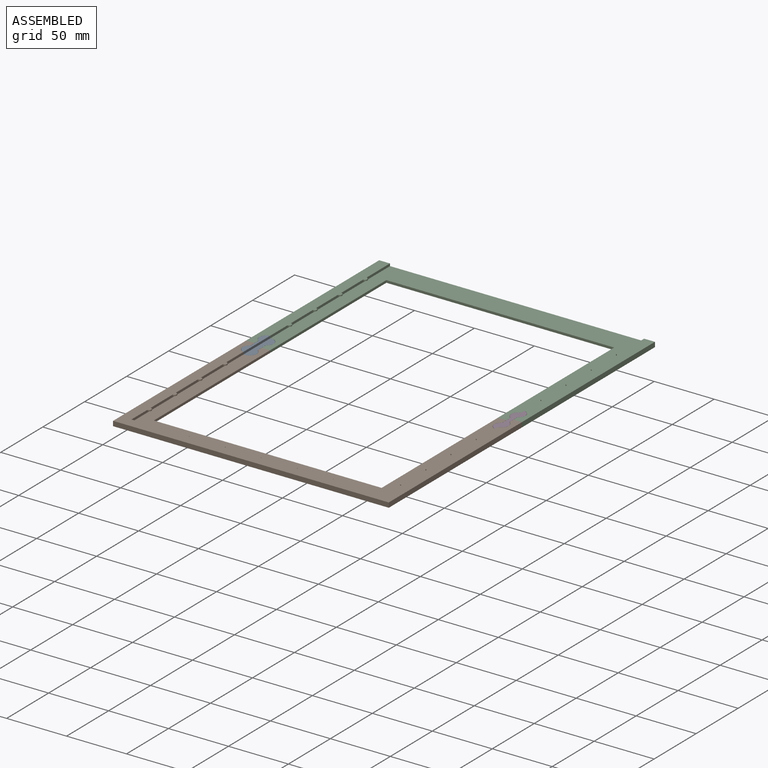
[diagram: assembled view]
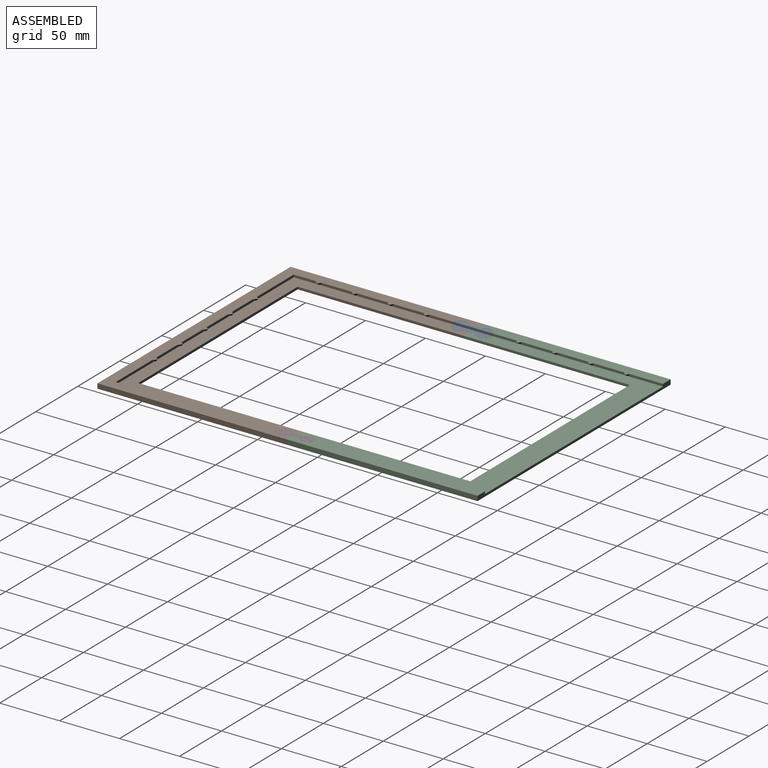
[diagram: assembled view, second angle]
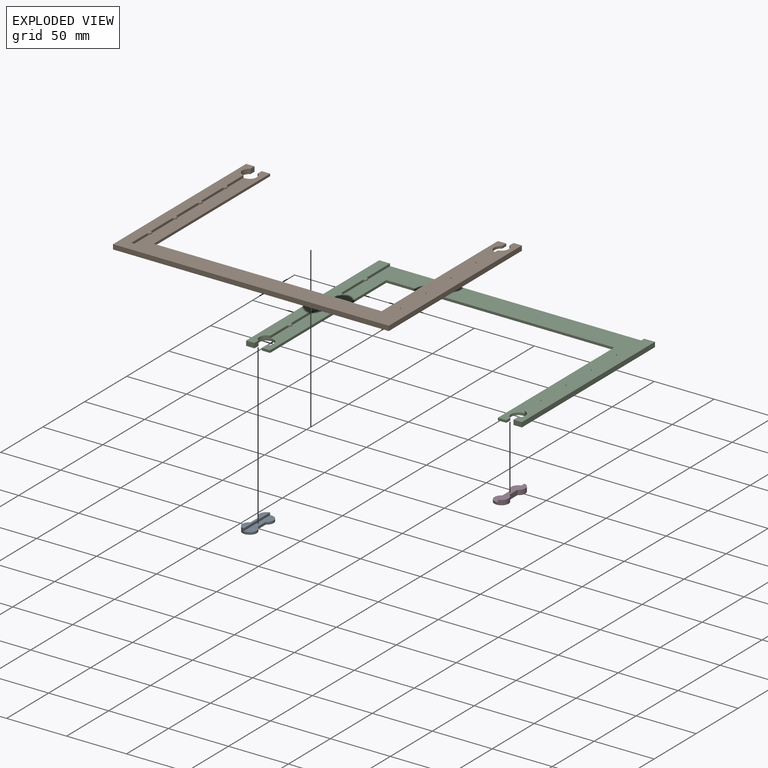
[diagram: exploded view]
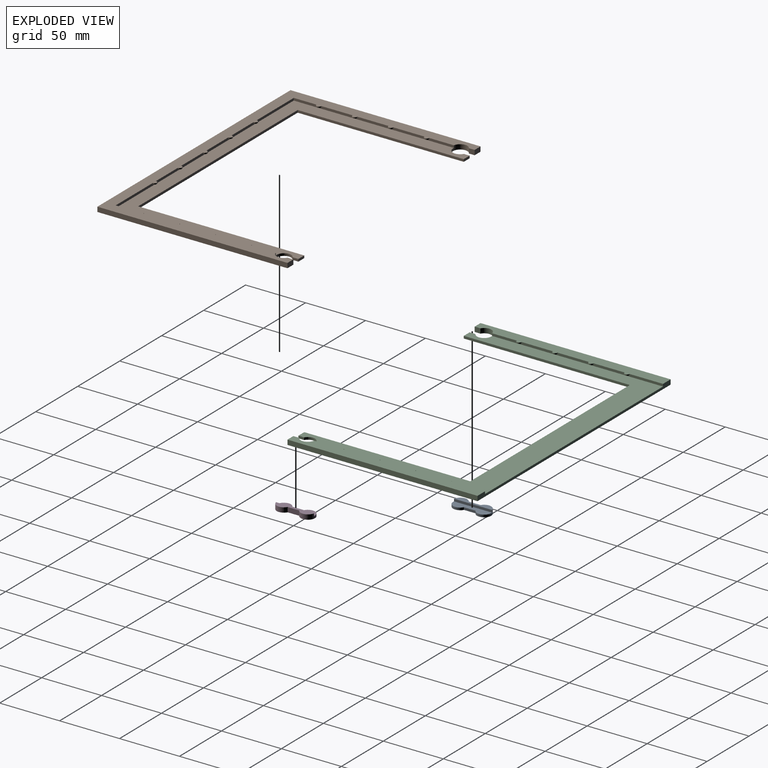
[diagram: exploded view, second angle]
ASSEMBLY  parts=4 mates=3
PART A: 8 faces, bbox 11.8x31.8x4 mm
  f0: cylinder r=5.9mm len=11.8mm, axis (0,0,-1), area 91mm2, adj f1,f3,f4,f5,f6,f7
  f1: plane 9.72x2mm, normal (1,0,0), area 19.4mm2, adj f0,f2,f5,f7
  f2: cylinder r=5.9mm len=11.8mm, axis (0,0,-1), area 91mm2, adj f1,f3,f4,f5,f6,f7
  f3: plane 9.72x4mm, normal (-1,0,0), area 38.9mm2, adj f0,f2,f4,f7
  f4: plane 31.63x4.9mm, normal (0,0,1), area 102.8mm2, adj f0,f2,f3,f6
  f5: plane 31.8x6.9mm, normal (0,0,1), area 166.3mm2, adj f0,f1,f2,f6
  f6: plane 31.63x2mm, normal (1,0,0), area 63.3mm2, adj f0,f2,f4,f5
  f7: plane 31.8x11.8mm, normal (0,0,-1), area 269.1mm2, adj f0,f1,f2,f3
PART B: 48 faces, bbox 230x158.5x4 mm
  f0: plane 4x2mm, normal (0,0,-1), area 6.3mm2, adj f17,f18
  f1: plane 4x2mm, normal (0,0,-1), area 6.3mm2, adj f16,f18
  f2: plane 4x2mm, normal (0,0,-1), area 6.3mm2, adj f15,f18
  f3: plane 4x2mm, normal (0,0,-1), area 6.3mm2, adj f14,f18
  f4: plane 4x2mm, normal (0,0,-1), area 6.3mm2, adj f23,f24
  f5: plane 4x2mm, normal (0,0,-1), area 6.3mm2, adj f22,f24
  f6: plane 4x2mm, normal (0,0,-1), area 6.3mm2, adj f21,f24
  f7: plane 4x2mm, normal (0,0,-1), area 6.3mm2, adj f20,f24
  f8: plane 4x2mm, normal (0,0,-1), area 6.3mm2, adj f19,f24
  f9: plane 4x2mm, normal (0,0,-1), area 6.3mm2, adj f28,f29
  f10: plane 4x2mm, normal (0,0,-1), area 6.3mm2, adj f27,f29
  f11: plane 4x2mm, normal (0,0,-1), area 6.3mm2, adj f26,f29
  f12: plane 4x2mm, normal (0,0,-1), area 6.3mm2, adj f25,f29
  f13: plane 190x2mm, normal (0,1,0), area 380mm2, adj f34,f35,f42,f43
  f14: cylinder r=2mm len=4mm, axis (0,0,-1), area 6.3mm2, adj f3,f18,f39
  f15: cylinder r=2mm len=4mm, axis (0,0,-1), area 6.3mm2, adj f2,f18,f39
  f16: cylinder r=2mm len=4mm, axis (0,0,-1), area 6.3mm2, adj f1,f18,f39
  f17: cylinder r=2mm len=4mm, axis (0,0,-1), area 6.3mm2, adj f0,f18,f39
  f18: plane 133.58x2mm, normal (1,0,0), area 251.2mm2, adj f0,f1,f2,f3,f14,f15,f16,f17
  f19: cylinder r=2mm len=4mm, axis (0,0,-1), area 6.3mm2, adj f8,f24,f39
  f20: cylinder r=2mm len=4mm, axis (0,0,-1), area 6.3mm2, adj f7,f24,f39
  f21: cylinder r=2mm len=4mm, axis (0,0,-1), area 6.3mm2, adj f6,f24,f39
  f22: cylinder r=2mm len=4mm, axis (0,0,-1), area 6.3mm2, adj f5,f24,f39
  f23: cylinder r=2mm len=4mm, axis (0,0,-1), area 6.3mm2, adj f4,f24,f39
  f24: plane 212x2mm, normal (0,1,0), area 404mm2, adj f4,f5,f6,f7,f8,f18,f19,f20
  f25: cylinder r=2mm len=4mm, axis (0,0,-1), area 6.3mm2, adj f12,f29,f39
  f26: cylinder r=2mm len=4mm, axis (0,0,-1), area 6.3mm2, adj f11,f29,f39
  f27: cylinder r=2mm len=4mm, axis (0,0,-1), area 6.3mm2, adj f10,f29,f39
  f28: cylinder r=2mm len=4mm, axis (0,0,-1), area 6.3mm2, adj f9,f29,f39
  f29: plane 133.58x2mm, normal (-1,0,0), area 251.2mm2, adj f9,f10,f11,f12,f24,f25,f26,f27
  f30: plane 230x4mm, normal (0,-1,0), area 920mm2, adj f39,f40,f41,f42
  f31: cylinder r=6mm len=12mm, axis (0,0,-1), area 92.2mm2, adj f29,f33,f38,f39,f42,f43
  f32: cylinder r=6mm len=12mm, axis (0,0,-1), area 92.2mm2, adj f18,f36,f37,f39,f42,f43
  f33: plane 4.8x2mm, normal (1,0,0), area 9.6mm2, adj f31,f42,f43,f46
  f34: plane 138.5x2mm, normal (-1,0,0), area 277mm2, adj f13,f42,f43,f46
  f35: plane 138.5x2mm, normal (1,0,0), area 277mm2, adj f13,f42,f43,f45
  f36: plane 4.8x2mm, normal (-1,0,0), area 9.6mm2, adj f32,f42,f43,f45
  f37: plane 4.8x4mm, normal (1,0,0), area 19.2mm2, adj f32,f39,f42,f44
  f38: plane 4.8x4mm, normal (-1,0,0), area 19.2mm2, adj f31,f39,f42,f47
  f39: plane 230x158.5mm, normal (0,0,1), area 4736mm2, adj f14,f15,f16,f17,f18,f19,f20,f21
  f40: plane 158.5x4mm, normal (-1,0,0), area 634mm2, adj f30,f39,f42,f44
  f41: plane 158.5x4mm, normal (1,0,0), area 634mm2, adj f30,f39,f42,f47
  f42: plane 230x158.5mm, normal (0,0,-1), area 9862.7mm2, adj f13,f30,f31,f32,f33,f34,f35,f36
  f43: plane 212x149.5mm, normal (0,0,1), area 5208.4mm2, adj f13,f18,f24,f29,f31,f32,f33,f34
  f44: plane 7x4mm, normal (0,1,0), area 28mm2, adj f37,f39,f40,f42
  f45: plane 7x2mm, normal (0,1,0), area 14mm2, adj f35,f36,f42,f43
  f46: plane 7x2mm, normal (0,1,0), area 14mm2, adj f33,f34,f42,f43
  f47: plane 7x4mm, normal (0,1,0), area 28mm2, adj f38,f39,f41,f42
PART C: 38 faces, bbox 230x158.5x4 mm
  f0: plane 212x158.5mm, normal (0,0,1), area 7116.4mm2, adj f2,f3,f9,f10,f12,f13,f14,f15
  f1: plane 230x158.5mm, normal (0,0,-1), area 9862.7mm2, adj f2,f3,f4,f5,f8,f9,f10,f11
  f2: plane 138.5x2mm, normal (-1,0,0), area 277mm2, adj f0,f1,f15,f36
  f3: plane 138.5x2mm, normal (1,0,0), area 277mm2, adj f0,f1,f15,f35
  f4: plane 158.5x4mm, normal (1,0,0), area 634mm2, adj f1,f7,f14,f37
  f5: plane 158.5x4mm, normal (-1,0,0), area 634mm2, adj f1,f6,f14,f34
  f6: plane 158.5x11mm, normal (0,0,1), area 1398.3mm2, adj f5,f11,f13,f14,f17,f18,f19,f20
  f7: plane 158.5x11mm, normal (0,0,1), area 1398.3mm2, adj f4,f8,f12,f14,f16,f22,f23,f24
  f8: plane 4.8x4mm, normal (-1,0,0), area 19.2mm2, adj f1,f7,f16,f37
  f9: plane 4.8x2mm, normal (1,0,0), area 9.6mm2, adj f0,f1,f16,f36
  f10: plane 4.8x2mm, normal (-1,0,0), area 9.6mm2, adj f0,f1,f17,f35
  f11: plane 4.8x4mm, normal (1,0,0), area 19.2mm2, adj f1,f6,f17,f34
  f12: plane 142.58x2mm, normal (-1,0,0), area 269.2mm2, adj f0,f7,f14,f16,f22,f23,f24,f25
  f13: plane 142.58x2mm, normal (1,0,0), area 269.2mm2, adj f0,f6,f14,f17,f18,f19,f20,f21
  f14: plane 230x4mm, normal (0,1,0), area 496mm2, adj f0,f1,f4,f5,f6,f7,f12,f13
  f15: plane 190x2mm, normal (0,-1,0), area 380mm2, adj f0,f1,f2,f3
  f16: cylinder r=6mm len=12mm, axis (0,0,-1), area 92.2mm2, adj f0,f1,f7,f8,f9,f12
  f17: cylinder r=6mm len=12mm, axis (0,0,-1), area 92.2mm2, adj f0,f1,f6,f10,f11,f13
  f18: cylinder r=2mm len=4mm, axis (0,0,-1), area 6.3mm2, adj f6,f13,f33
  f19: cylinder r=2mm len=4mm, axis (0,0,-1), area 6.3mm2, adj f6,f13,f32
  f20: cylinder r=2mm len=4mm, axis (0,0,-1), area 6.3mm2, adj f6,f13,f31
  f21: cylinder r=2mm len=4mm, axis (0,0,-1), area 6.3mm2, adj f6,f13,f30
  f22: cylinder r=2mm len=4mm, axis (0,0,-1), area 6.3mm2, adj f7,f12,f29
  f23: cylinder r=2mm len=4mm, axis (0,0,-1), area 6.3mm2, adj f7,f12,f28
  f24: cylinder r=2mm len=4mm, axis (0,0,-1), area 6.3mm2, adj f7,f12,f27
  f25: cylinder r=2mm len=4mm, axis (0,0,-1), area 6.3mm2, adj f7,f12,f26
  f26: plane 4x2mm, normal (0,0,-1), area 6.3mm2, adj f12,f25
  f27: plane 4x2mm, normal (0,0,-1), area 6.3mm2, adj f12,f24
  f28: plane 4x2mm, normal (0,0,-1), area 6.3mm2, adj f12,f23
  f29: plane 4x2mm, normal (0,0,-1), area 6.3mm2, adj f12,f22
  f30: plane 4x2mm, normal (0,0,-1), area 6.3mm2, adj f13,f21
  f31: plane 4x2mm, normal (0,0,-1), area 6.3mm2, adj f13,f20
  f32: plane 4x2mm, normal (0,0,-1), area 6.3mm2, adj f13,f19
  f33: plane 4x2mm, normal (0,0,-1), area 6.3mm2, adj f13,f18
  f34: plane 7x4mm, normal (0,-1,0), area 28mm2, adj f1,f5,f6,f11
  f35: plane 7x2mm, normal (0,-1,0), area 14mm2, adj f0,f1,f3,f10
  f36: plane 7x2mm, normal (0,-1,0), area 14mm2, adj f0,f1,f2,f9
  f37: plane 7x4mm, normal (0,-1,0), area 28mm2, adj f1,f4,f7,f8
PART D: same geometry as A
PLACE A t=(-130.29,-7.16,29.22)mm
PLACE B t=(-25.29,-7.16,29.22)mm
PLACE C t=(-25.29,-7.16,29.22)mm
PLACE D rot(axis=(0,0,-1),180deg) t=(79.71,-7.16,29.22)mm
MATE fastened C.f16 <-> D.f0  axis (0,0,-1) through (79.71,2.84,29.22)mm
MATE fastened C.f17 <-> A.f2  axis (0,0,-1) through (-130.29,2.84,29.22)mm
MATE fastened B.f31 <-> D.f2  axis (0,0,-1) through (79.71,-17.16,29.22)mm
